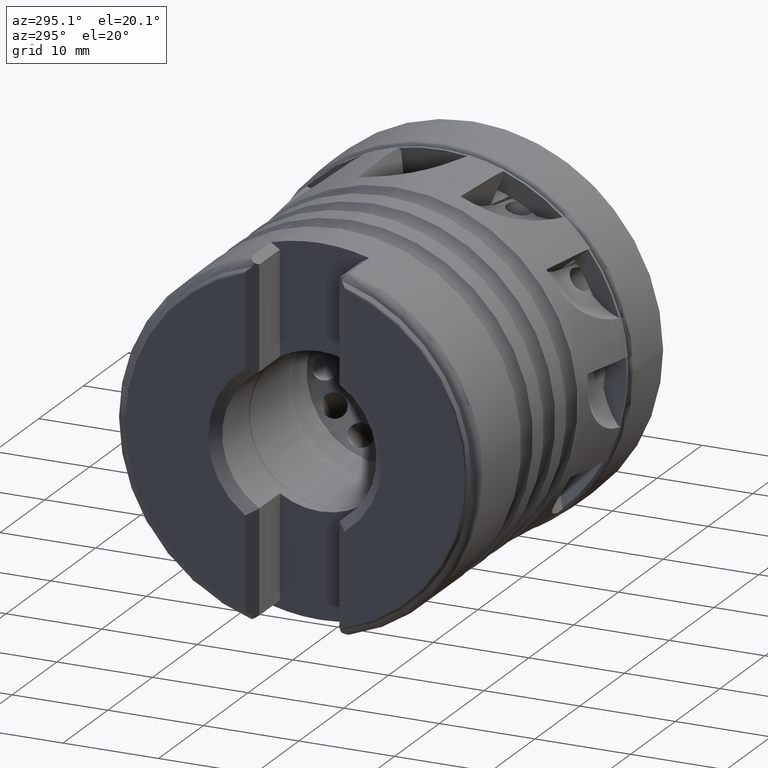
[diagram: clean part render]
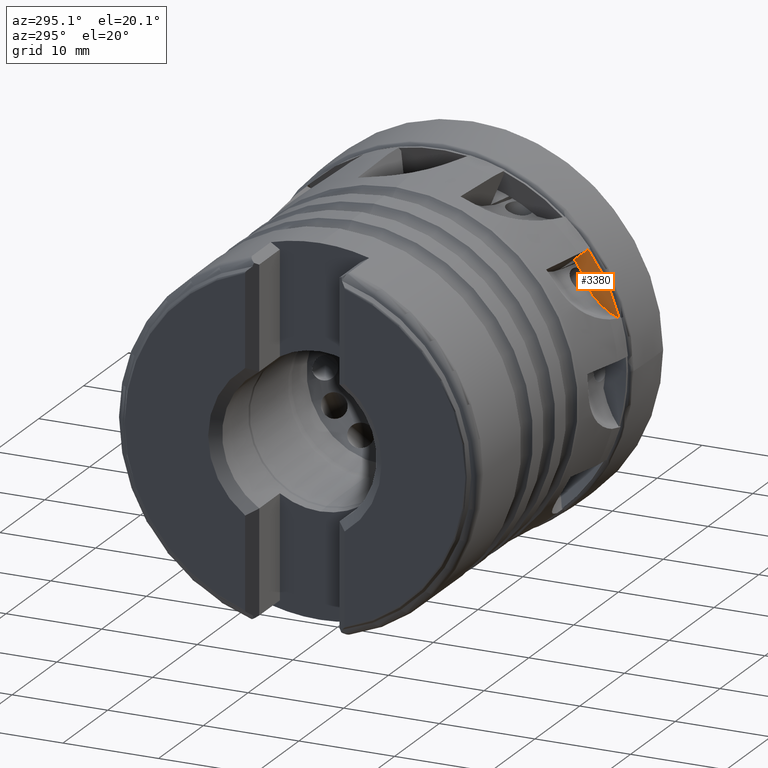
[diagram: same view with one face highlighted and labeled with its STEP entity id]
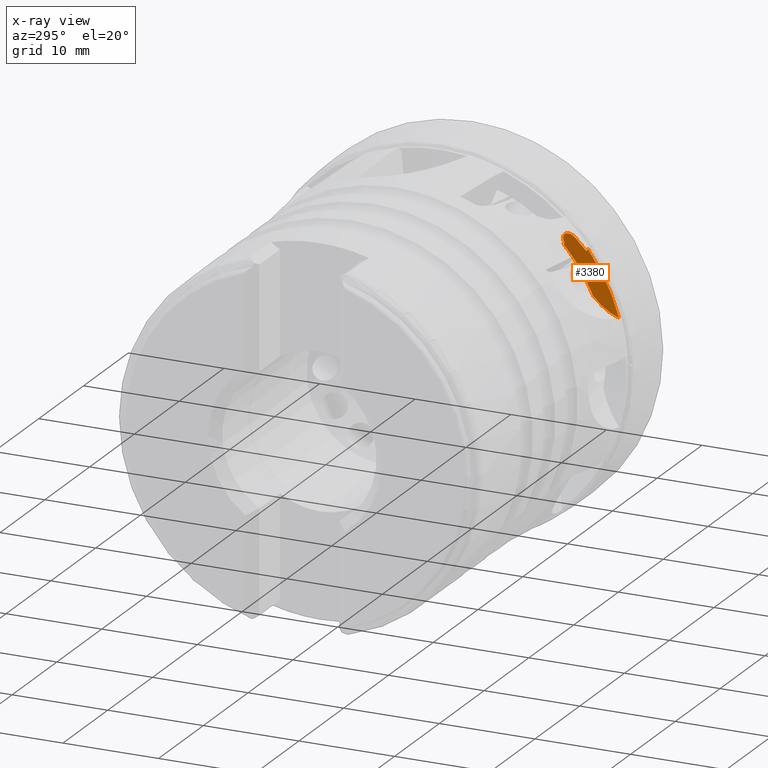
[diagram: x-ray of the same camera — body ghosted, the highlighted face saturated]
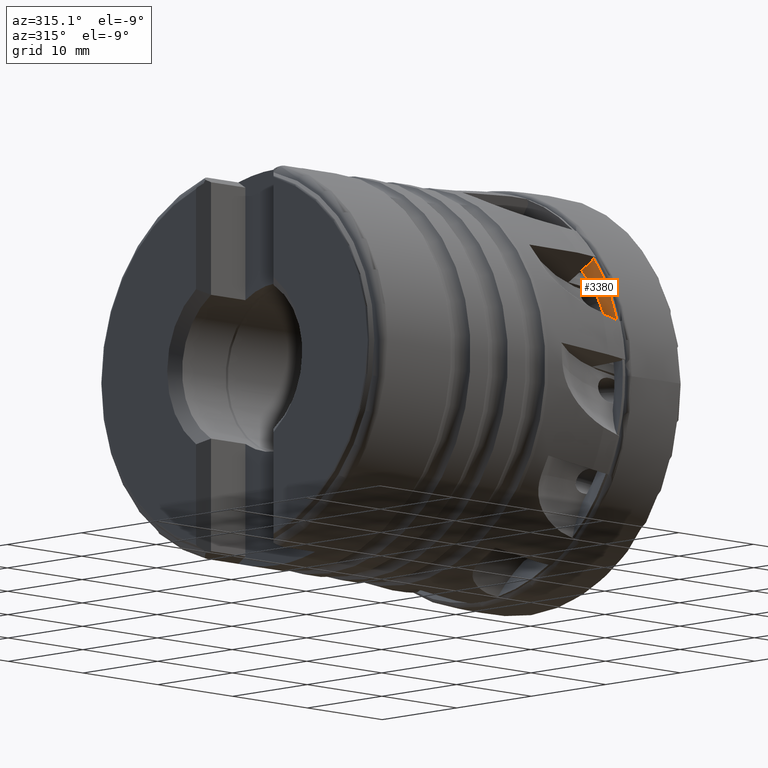
[diagram: same view with one face highlighted and labeled with its STEP entity id]
A machine part, auxiliary view. The second image highlights one B-rep face of the part: STEP entity #3380.
The next image is the same camera in x-ray: the body ghosted, the highlighted face saturated — about 0% of this face is hidden behind the body in this view.
A second angle (auxiliary view) of the same face is appended — the face is thin or edge-on in the first view.
In plain terms, the highlighted conical surface has half-angle 57.783 deg.
Its self-contained STEP definition (entity closure, byte-faithful):
#114 = CARTESIAN_POINT ( 'NONE',  ( -6.722798198322214700, -14.86348134393819900, 11.74336492565125800 ) ) ;
#185 = CARTESIAN_POINT ( 'NONE',  ( -7.049999999999988300, -15.44736407829754500, 11.83777220507262100 ) ) ;
#209 = CARTESIAN_POINT ( 'NONE',  ( -6.629811160287872000, -13.94413595264767000, 12.60554577276799800 ) ) ;
#694 = VERTEX_POINT ( 'NONE', #114 ) ;
#1353 = VERTEX_POINT ( 'NONE', #185 ) ;
#1398 = VERTEX_POINT ( 'NONE', #209 ) ;
#1468 = CONICAL_SURFACE ( 'NONE', #1509, 16.41531294228025600, 1.008496675061483400 ) ;
#1509 = AXIS2_PLACEMENT_3D ( 'NONE', #5673, #5675, #5672 ) ;
#1717 = CARTESIAN_POINT ( 'NONE',  ( -5.317193292182540000, -12.10728136134126500, 11.52497775827208000 ) ) ;
#1723 = CARTESIAN_POINT ( 'NONE',  ( -5.288585781121374100, -12.15834840647242700, 11.40381529226395700 ) ) ;
#1725 = CARTESIAN_POINT ( 'NONE',  ( -6.629811160287872000, -13.94413595264767000, 12.60554577276799800 ) ) ;
#1727 = CARTESIAN_POINT ( 'NONE',  ( -5.361663472526071700, -12.08481486357371500, 11.65041479494435400 ) ) ;
#1728 = CARTESIAN_POINT ( 'NONE',  ( -5.469485526682442300, -12.08705865791863400, 11.89382889849120100 ) ) ;
#1729 = CARTESIAN_POINT ( 'NONE',  ( -5.532373870264267500, -12.11164598643046600, 12.01091091823740500 ) ) ;
#1730 = CARTESIAN_POINT ( 'NONE',  ( -5.733102077952406900, -12.23834593778886200, 12.33536839405471500 ) ) ;
#1731 = CARTESIAN_POINT ( 'NONE',  ( -5.880163707413652600, -12.39021023412552000, 12.51319533047826300 ) ) ;
#1732 = CARTESIAN_POINT ( 'NONE',  ( -6.161698783968429200, -12.76690004609816700, 12.76839949396226500 ) ) ;
#1733 = CARTESIAN_POINT ( 'NONE',  ( -6.298193605885265000, -12.99439147650475100, 12.84751259039380000 ) ) ;
#1734 = CARTESIAN_POINT ( 'NONE',  ( -6.466660089840714500, -13.35813296376441000, 12.85602725488631400 ) ) ;
#1735 = CARTESIAN_POINT ( 'NONE',  ( -6.516786607818889200, -13.48362739589058100, 12.83993945097255800 ) ) ;
#1736 = CARTESIAN_POINT ( 'NONE',  ( -6.594036926277288700, -13.72693185174260600, 12.75964739702041100 ) ) ;
#1737 = CARTESIAN_POINT ( 'NONE',  ( -6.620842780676453800, -13.84438193333683600, 12.69501221558942000 ) ) ;
#1738 = CARTESIAN_POINT ( 'NONE',  ( -6.629811160287872000, -13.94413595264767000, 12.60554577276799800 ) ) ;
#1743 = CARTESIAN_POINT ( 'NONE',  ( -6.657899162304585300, -14.25655483063693100, 12.32534647977655100 ) ) ;
#1744 = CARTESIAN_POINT ( 'NONE',  ( -6.688898765253580500, -14.56304208633885200, 12.03791648420043200 ) ) ;
#1745 = CARTESIAN_POINT ( 'NONE',  ( -6.722798198322214700, -14.86348134393819900, 11.74336492565125800 ) ) ;
#2637 = EDGE_LOOP ( 'NONE', ( #3283, #3284, #3285, #3286, #3287, #3288, #3289, #3290 ) ) ;
#2832 =( BOUNDED_CURVE ( )  B_SPLINE_CURVE ( 3, ( #8577, #8584, #8585, #8586 ),
 .UNSPECIFIED., .F., .T. ) 
 B_SPLINE_CURVE_WITH_KNOTS ( ( 4, 4 ),
 ( 3.517571999839524700, 3.525876579350601500 ),
 .UNSPECIFIED. ) 
 CURVE ( )  GEOMETRIC_REPRESENTATION_ITEM ( )  RATIONAL_B_SPLINE_CURVE ( ( 1.000000000000000000, 0.9999942528381861000, 0.9999942528381861000, 1.000000000000000000 ) ) 
 REPRESENTATION_ITEM ( '' )  );
#2845 =( BOUNDED_CURVE ( )  B_SPLINE_CURVE ( 3, ( #1725, #1743, #1744, #1745 ),
 .UNSPECIFIED., .F., .T. ) 
 B_SPLINE_CURVE_WITH_KNOTS ( ( 4, 4 ),
 ( 3.327064756493229000, 3.366037593829015200 ),
 .UNSPECIFIED. ) 
 CURVE ( )  GEOMETRIC_REPRESENTATION_ITEM ( )  RATIONAL_B_SPLINE_CURVE ( ( 1.000000000000000000, 0.9998734305009954200, 0.9998734305009954200, 1.000000000000000000 ) ) 
 REPRESENTATION_ITEM ( '' )  );
#2896 = B_SPLINE_CURVE_WITH_KNOTS ( 'NONE', 3,
 ( #1723, #1717, #1727, #1728, #1729, #1730, #1731, #1732, #1733, #1734, #1735, #1736, #1737, #1738 ),
 .UNSPECIFIED., .F., .F.,
 ( 4, 2, 2, 2, 2, 2, 4 ),
 ( 0.0000000000000000000, 0.0003969545271658454100, 0.0007939090543316908200, 0.001587818108663387300, 0.002381727162995083300, 0.002778681690160934300, 0.003175636217326785000 ),
 .UNSPECIFIED. ) ;
#2945 = B_SPLINE_CURVE_WITH_KNOTS ( 'NONE', 3,
 ( #7966, #7957, #7971, #7972 ),
 .UNSPECIFIED., .F., .F.,
 ( 4, 4 ),
 ( 3.773363923188520000E-007, 0.0004671965574939758600 ),
 .UNSPECIFIED. ) ;
#3283 = ORIENTED_EDGE ( 'NONE', *, *, #6175, .T. ) ;
#3284 = ORIENTED_EDGE ( 'NONE', *, *, #9159, .T. ) ;
#3285 = ORIENTED_EDGE ( 'NONE', *, *, #6168, .F. ) ;
#3286 = ORIENTED_EDGE ( 'NONE', *, *, #4539, .T. ) ;
#3287 = ORIENTED_EDGE ( 'NONE', *, *, #6411, .F. ) ;
#3288 = ORIENTED_EDGE ( 'NONE', *, *, #6051, .F. ) ;
#3289 = ORIENTED_EDGE ( 'NONE', *, *, #6049, .F. ) ;
#3290 = ORIENTED_EDGE ( 'NONE', *, *, #6405, .T. ) ;
#3380 = ADVANCED_FACE ( 'NONE', ( #5674 ), #1468, .F. ) ;
#3669 = B_SPLINE_CURVE_WITH_KNOTS ( 'NONE', 3,
 ( #6739, #6738, #6744, #6745, #6746, #6747, #6748, #6749 ),
 .UNSPECIFIED., .F., .F.,
 ( 4, 2, 2, 4 ),
 ( 6.163966488523273800E-007, 0.002147469140263900700, 0.003220895512071420100, 0.004294321883878939900 ),
 .UNSPECIFIED. ) ;
#3796 = B_SPLINE_CURVE_WITH_KNOTS ( 'NONE', 3,
 ( #8560, #8559, #8564, #8565 ),
 .UNSPECIFIED., .F., .F.,
 ( 4, 4 ),
 ( 0.0003262518310205245900, 0.0006685311900748846400 ),
 .UNSPECIFIED. ) ;
#4539 = EDGE_CURVE ( 'NONE', #1353, #5613, #2945, .T. ) ;
#5109 = CIRCLE ( 'NONE', #5112, 19.50000000000000400 ) ;
#5112 = AXIS2_PLACEMENT_3D ( 'NONE', #9976, #9977, #9978 ) ;
#5123 = CIRCLE ( 'NONE', #5126, 16.41531294228025600 ) ;
#5126 = AXIS2_PLACEMENT_3D ( 'NONE', #9997, #9998, #9999 ) ;
#5403 = VERTEX_POINT ( 'NONE', #6965 ) ;
#5422 = VERTEX_POINT ( 'NONE', #6984 ) ;
#5613 = VERTEX_POINT ( 'NONE', #7032 ) ;
#5616 = VERTEX_POINT ( 'NONE', #7035 ) ;
#5629 = VERTEX_POINT ( 'NONE', #7048 ) ;
#5672 = DIRECTION ( 'NONE',  ( 1.056771492615745500E-016, -1.000000000000000000, 0.0000000000000000000 ) ) ;
#5673 = CARTESIAN_POINT ( 'NONE',  ( -5.106160599244159200, 0.04834982009452949000, 0.0000000000000000000 ) ) ;
#5674 = FACE_OUTER_BOUND ( 'NONE', #2637, .T. ) ;
#5675 = DIRECTION ( 'NONE',  ( -1.000000000000000000, -1.224527162102617500E-016, 0.0000000000000000000 ) ) ;
#6049 = EDGE_CURVE ( 'NONE', #5629, #1398, #2896, .T. ) ;
#6051 = EDGE_CURVE ( 'NONE', #1398, #694, #2845, .T. ) ;
#6168 = EDGE_CURVE ( 'NONE', #1353, #5422, #5109, .T. ) ;
#6175 = EDGE_CURVE ( 'NONE', #5616, #5403, #5123, .T. ) ;
#6405 = EDGE_CURVE ( 'NONE', #5629, #5616, #3796, .T. ) ;
#6411 = EDGE_CURVE ( 'NONE', #694, #5613, #2832, .T. ) ;
#6738 = CARTESIAN_POINT ( 'NONE',  ( -5.338373326810157400, -15.61315965971709500, 6.062530748345688300 ) ) ;
#6739 = CARTESIAN_POINT ( 'NONE',  ( -5.106160599244157400, -15.04480095534698800, 6.454401495319515000 ) ) ;
#6744 = CARTESIAN_POINT ( 'NONE',  ( -5.633759145507403900, -16.20656029197609600, 5.792779821741663500 ) ) ;
#6745 = CARTESIAN_POINT ( 'NONE',  ( -6.138064764005718200, -17.13514233108756800, 5.537574464271506800 ) ) ;
#6746 = CARTESIAN_POINT ( 'NONE',  ( -6.314215181879780500, -17.44637699511020700, 5.479568160762116900 ) ) ;
#6747 = CARTESIAN_POINT ( 'NONE',  ( -6.675061450912933100, -18.06556243445737700, 5.412994158751164500 ) ) ;
#6748 = CARTESIAN_POINT ( 'NONE',  ( -6.860461373931277900, -18.37474935819697900, 5.404141236626822200 ) ) ;
#6749 = CARTESIAN_POINT ( 'NONE',  ( -7.049999999999986500, -18.68384473049074000, 5.418015071871217000 ) ) ;
#6965 = CARTESIAN_POINT ( 'NONE',  ( -5.106160599244157400, -15.04480095534698800, 6.454401495319515000 ) ) ;
#6984 = CARTESIAN_POINT ( 'NONE',  ( -7.049999999999986500, -18.68384473049074000, 5.418015071871217000 ) ) ;
#7032 = CARTESIAN_POINT ( 'NONE',  ( -6.802601091770952700, -15.16585877661427900, 11.55944000527681800 ) ) ;
#7035 = CARTESIAN_POINT ( 'NONE',  ( -5.106160599244157400, -11.95250909160563100, 11.20008412354391300 ) ) ;
#7048 = CARTESIAN_POINT ( 'NONE',  ( -5.288585781121374100, -12.15834840647242700, 11.40381529226395700 ) ) ;
#7957 = CARTESIAN_POINT ( 'NONE',  ( -6.967523786428583500, -15.35353440316058200, 11.74499812797046200 ) ) ;
#7966 = CARTESIAN_POINT ( 'NONE',  ( -7.049999999999988300, -15.44736407829754500, 11.83777220507262100 ) ) ;
#7971 = CARTESIAN_POINT ( 'NONE',  ( -6.885057280339603700, -15.25969941309521100, 11.65222079550370900 ) ) ;
#7972 = CARTESIAN_POINT ( 'NONE',  ( -6.802601091770952700, -15.16585877661427900, 11.55944000527681800 ) ) ;
#8559 = CARTESIAN_POINT ( 'NONE',  ( -5.227777068188351500, -12.08973547733120300, 11.33590501067402200 ) ) ;
#8560 = CARTESIAN_POINT ( 'NONE',  ( -5.288585781121374100, -12.15834840647242700, 11.40381529226395700 ) ) ;
#8564 = CARTESIAN_POINT ( 'NONE',  ( -5.166968668612914200, -12.02112237547011200, 11.26799462300099500 ) ) ;
#8565 = CARTESIAN_POINT ( 'NONE',  ( -5.106160599244157400, -11.95250909160563100, 11.20008412354391300 ) ) ;
#8577 = CARTESIAN_POINT ( 'NONE',  ( -6.722798198322214700, -14.86348134393819900, 11.74336492565125800 ) ) ;
#8584 = CARTESIAN_POINT ( 'NONE',  ( -6.749122647916114400, -14.96445852631871200, 11.68266298021169700 ) ) ;
#8585 = CARTESIAN_POINT ( 'NONE',  ( -6.775723765279958700, -15.06525158315140400, 11.62135432106942700 ) ) ;
#8586 = CARTESIAN_POINT ( 'NONE',  ( -6.802601091770952700, -15.16585877661427900, 11.55944000527681800 ) ) ;
#9159 = EDGE_CURVE ( 'NONE', #5403, #5422, #3669, .T. ) ;
#9976 = CARTESIAN_POINT ( 'NONE',  ( -7.049999999999989200, 0.04834982009452925400, 0.0000000000000000000 ) ) ;
#9977 = DIRECTION ( 'NONE',  ( 1.000000000000000000, 1.224527162102617500E-016, -0.0000000000000000000 ) ) ;
#9978 = DIRECTION ( 'NONE',  ( -1.334402673828312800E-016, 1.000000000000000000, 0.0000000000000000000 ) ) ;
#9997 = CARTESIAN_POINT ( 'NONE',  ( -5.106160599244159200, 0.04834982009452949000, 0.0000000000000000000 ) ) ;
#9998 = DIRECTION ( 'NONE',  ( 1.000000000000000000, 1.224527162102617500E-016, -0.0000000000000000000 ) ) ;
#9999 = DIRECTION ( 'NONE',  ( -1.056771492615745500E-016, 1.000000000000000000, 0.0000000000000000000 ) ) ;